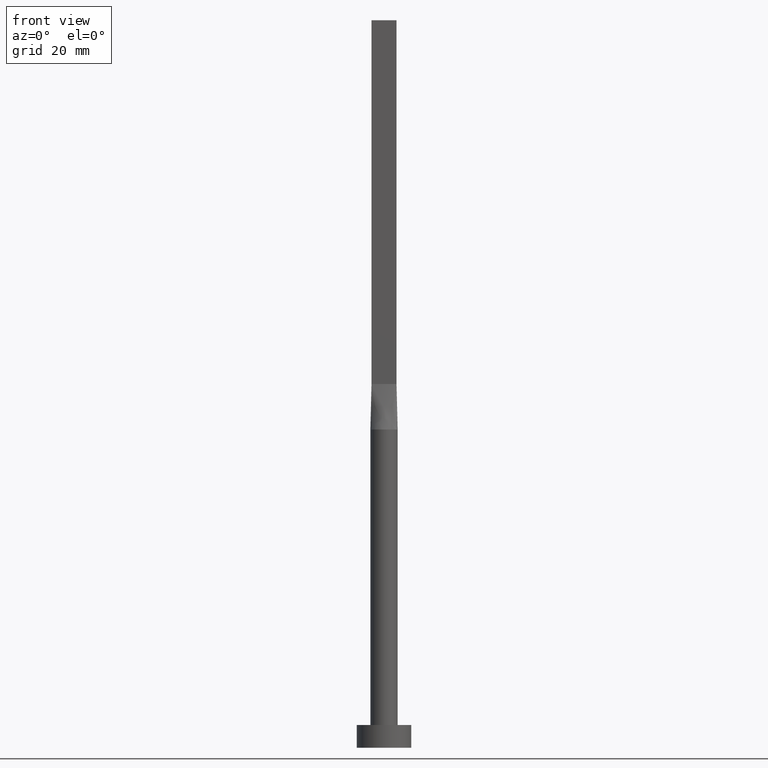
[diagram: clean part render]
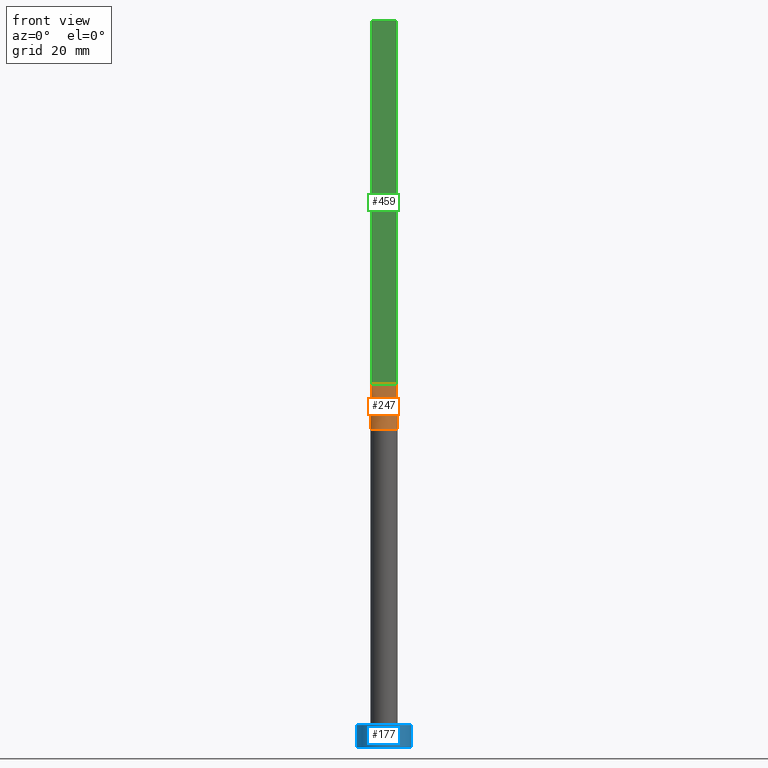
[diagram: same view with three faces highlighted in distinct colors, each labeled with its STEP entity id]
A machine part, front view with three faces highlighted in distinct colors.
Their STEP definitions:

[orange] entity #247 — the highlighted face is a freeform B-spline surface patch.
#14 = CARTESIAN_POINT ( 'NONE',  ( -2.750000000000000000, -0.5999999999999994227, 80.00000000000000000 ) ) ;
#33 = CARTESIAN_POINT ( 'NONE',  ( -0.4583333333333322046, -0.5999999999999994227, 79.99999999999998579 ) ) ;
#34 = CARTESIAN_POINT ( 'NONE',  ( 2.750000000000000000, -0.5999999999999997558, 80.00000000000000000 ) ) ;
#36 = CARTESIAN_POINT ( 'NONE',  ( -1.604166666666664742, -0.5999999999999994227, 79.99999999999998579 ) ) ;
#41 = CARTESIAN_POINT ( 'NONE',  ( -0.8041209001220698260, -2.916015559847872307, 70.00000000000002842 ) ) ;
#54 = DIRECTION ( 'NONE',  ( -0.01810162078030963170, -0.003949444533885651705, -0.9998283518749604415 ) ) ;
#63 = CARTESIAN_POINT ( 'NONE',  ( 2.750000000000000000, -0.5999999999999997558, 80.00000000000000000 ) ) ;
#65 = CARTESIAN_POINT ( 'NONE',  ( -2.518011668798964653, -1.657305971825550062, 70.00000000000000000 ) ) ;
#81 = CARTESIAN_POINT ( 'NONE',  ( 2.931047284229977734, -0.6395012256501753090, 70.00000000000000000 ) ) ;
#82 = CIRCLE ( 'NONE', #409, 3.000000000000000444 ) ;
#88 = DIRECTION ( 'NONE',  ( -0.01810162078030963170, 0.003949444533885597929, 0.9998283518749604415 ) ) ;
#95 = VERTEX_POINT ( 'NONE', #34 ) ;
#108 = CARTESIAN_POINT ( 'NONE',  ( 2.520833333333333037, -0.5999999999999996447, 79.99999999999998579 ) ) ;
#111 = CARTESIAN_POINT ( 'NONE',  ( -2.878980386154874616, -0.8781411751610622707, 70.00000000000000000 ) ) ;
#128 = LINE ( 'NONE', #361, #565 ) ;
#136 = ORIENTED_EDGE ( 'NONE', *, *, #298, .T. ) ;
#152 = CARTESIAN_POINT ( 'NONE',  ( -1.517787371616672321, -2.616501225271827380, 70.00000000000001421 ) ) ;
#167 = CARTESIAN_POINT ( 'NONE',  ( -0.9166666666666650753, -0.5999999999999994227, 79.99999999999998579 ) ) ;
#170 = CARTESIAN_POINT ( 'NONE',  ( 1.517787371616671876, -2.616501225271829156, 70.00000000000002842 ) ) ;
#172 = CARTESIAN_POINT ( 'NONE',  ( -0.4026715616377306572, -3.000000000000000000, 70.00000000000002842 ) ) ;
#189 = LINE ( 'NONE', #506, #467 ) ;
#202 = B_SPLINE_SURFACE_WITH_KNOTS ( 'NONE', 3, 1, ( 
 ( #435, #463 ),
 ( #111, #392 ),
 ( #293, #217 ),
 ( #65, #438 ),
 ( #222, #36 ),
 ( #306, #481 ),
 ( #152, #167 ),
 ( #41, #33 ),
 ( #172, #562 ),
 ( #575, #244 ),
 ( #246, #289 ),
 ( #170, #515 ),
 ( #345, #516 ),
 ( #469, #388 ),
 ( #423, #395 ),
 ( #578, #349 ),
 ( #483, #108 ),
 ( #81, #63 ) ),
 .UNSPECIFIED., .F., .F., .F.,
 ( 4, 2, 2, 2, 2, 2, 2, 2, 4 ),
 ( 2, 2 ),
 ( 0.000000000000000000, 0.1250000000000000833, 0.2500000000000001665, 0.3750000000000001110, 0.5000000000000001110, 0.6250000000000001110, 0.7500000000000000000, 0.8750000000000000000, 1.000000000000000000 ),
 ( 0.000000000000000000, 1.000000000000000000 ),
 .UNSPECIFIED. ) ;
#206 = EDGE_CURVE ( 'NONE', #556, #508, #189, .T. ) ;
#217 = CARTESIAN_POINT ( 'NONE',  ( -2.291666666666665630, -0.5999999999999994227, 79.99999999999998579 ) ) ;
#222 = CARTESIAN_POINT ( 'NONE',  ( -2.328745122427009928, -1.922758842442225058, 69.99999999999998579 ) ) ;
#238 = VERTEX_POINT ( 'NONE', #264 ) ;
#244 = CARTESIAN_POINT ( 'NONE',  ( 0.2291666666666674901, -0.5999999999999995337, 79.99999999999998579 ) ) ;
#246 = CARTESIAN_POINT ( 'NONE',  ( 0.8041209001220684938, -2.916015559847872751, 70.00000000000002842 ) ) ;
#247 = ADVANCED_FACE ( 'NONE', ( #302 ), #202, .T. ) ;
#264 = CARTESIAN_POINT ( 'NONE',  ( 2.931332910560268790, -0.6395638358681950963, 70.00000000000000000 ) ) ;
#289 = CARTESIAN_POINT ( 'NONE',  ( 0.4583333333333343695, -0.5999999999999995337, 79.99999999999998579 ) ) ;
#293 = CARTESIAN_POINT ( 'NONE',  ( -2.792624347712116428, -1.135030881087314647, 69.99999999999998579 ) ) ;
#298 = EDGE_CURVE ( 'NONE', #508, #238, #82, .T. ) ;
#302 = FACE_OUTER_BOUND ( 'NONE', #424, .T. ) ;
#306 = CARTESIAN_POINT ( 'NONE',  ( -1.829136458871248427, -2.402980488111649660, 69.99999999999998579 ) ) ;
#315 = LINE ( 'NONE', #492, #329 ) ;
#329 = VECTOR ( 'NONE', #88, 1000.000000000000000 ) ;
#336 = DIRECTION ( 'NONE',  ( 0.000000000000000000, 0.000000000000000000, 1.000000000000000000 ) ) ;
#345 = CARTESIAN_POINT ( 'NONE',  ( 1.829136458871248205, -2.402980488111650992, 70.00000000000000000 ) ) ;
#349 = CARTESIAN_POINT ( 'NONE',  ( 2.291666666666666519, -0.5999999999999996447, 79.99999999999998579 ) ) ;
#361 = CARTESIAN_POINT ( 'NONE',  ( -2.750000000000000000, -0.5999999999999994227, 80.00000000000000000 ) ) ;
#366 = EDGE_CURVE ( 'NONE', #556, #95, #128, .T. ) ;
#376 = CARTESIAN_POINT ( 'NONE',  ( 0.000000000000000000, 0.000000000000000000, 70.00000000000000000 ) ) ;
#385 = ORIENTED_EDGE ( 'NONE', *, *, #480, .T. ) ;
#388 = CARTESIAN_POINT ( 'NONE',  ( 1.604166666666666963, -0.5999999999999996447, 79.99999999999998579 ) ) ;
#392 = CARTESIAN_POINT ( 'NONE',  ( -2.520833333333333037, -0.5999999999999994227, 79.99999999999998579 ) ) ;
#395 = CARTESIAN_POINT ( 'NONE',  ( 1.833333333333333481, -0.5999999999999996447, 79.99999999999998579 ) ) ;
#409 = AXIS2_PLACEMENT_3D ( 'NONE', #376, #336, #558 ) ;
#422 = ORIENTED_EDGE ( 'NONE', *, *, #206, .T. ) ;
#423 = CARTESIAN_POINT ( 'NONE',  ( 2.518011668798964209, -1.657305971825550506, 70.00000000000001421 ) ) ;
#424 = EDGE_LOOP ( 'NONE', ( #136, #385, #517, #422 ) ) ;
#435 = CARTESIAN_POINT ( 'NONE',  ( -2.931047284229977734, -0.6395012256501755310, 70.00000000000000000 ) ) ;
#438 = CARTESIAN_POINT ( 'NONE',  ( -1.833333333333331705, -0.5999999999999994227, 79.99999999999998579 ) ) ;
#463 = CARTESIAN_POINT ( 'NONE',  ( -2.750000000000000000, -0.5999999999999994227, 80.00000000000000000 ) ) ;
#467 = VECTOR ( 'NONE', #54, 1000.000000000000000 ) ;
#469 = CARTESIAN_POINT ( 'NONE',  ( 2.328745122427008152, -1.922758842442226390, 70.00000000000000000 ) ) ;
#480 = EDGE_CURVE ( 'NONE', #238, #95, #315, .T. ) ;
#481 = CARTESIAN_POINT ( 'NONE',  ( -1.145833333333331705, -0.5999999999999994227, 79.99999999999998579 ) ) ;
#483 = CARTESIAN_POINT ( 'NONE',  ( 2.878980386154875060, -0.8781411751610634919, 70.00000000000000000 ) ) ;
#492 = CARTESIAN_POINT ( 'NONE',  ( 2.840523642114988867, -0.6197506128250874768, 75.00000000000001421 ) ) ;
#506 = CARTESIAN_POINT ( 'NONE',  ( -2.840523642114988867, -0.6197506128250873658, 75.00000000000001421 ) ) ;
#508 = VERTEX_POINT ( 'NONE', #518 ) ;
#515 = CARTESIAN_POINT ( 'NONE',  ( 0.9166666666666676289, -0.5999999999999996447, 79.99999999999998579 ) ) ;
#516 = CARTESIAN_POINT ( 'NONE',  ( 1.145833333333333925, -0.5999999999999996447, 79.99999999999998579 ) ) ;
#517 = ORIENTED_EDGE ( 'NONE', *, *, #366, .F. ) ;
#518 = CARTESIAN_POINT ( 'NONE',  ( -2.931315536094174057, -0.6395601373676296220, 70.00000000000000000 ) ) ;
#534 = DIRECTION ( 'NONE',  ( 1.000000000000000000, -5.913830031739115543E-17, 0.000000000000000000 ) ) ;
#556 = VERTEX_POINT ( 'NONE', #14 ) ;
#558 = DIRECTION ( 'NONE',  ( 1.000000000000000000, 0.000000000000000000, 0.000000000000000000 ) ) ;
#562 = CARTESIAN_POINT ( 'NONE',  ( -0.2291666666666657692, -0.5999999999999995337, 79.99999999999998579 ) ) ;
#565 = VECTOR ( 'NONE', #534, 1000.000000000000000 ) ;
#575 = CARTESIAN_POINT ( 'NONE',  ( 0.4026715616377293805, -3.000000000000001332, 70.00000000000002842 ) ) ;
#578 = CARTESIAN_POINT ( 'NONE',  ( 2.792624347712116872, -1.135030881087315757, 70.00000000000001421 ) ) ;

[blue] entity #177 — the highlighted cylindrical surface (edge-blend (fillet) strip) has radius 6 mm, axis along (-0, -0, -1).
#3 = EDGE_CURVE ( 'NONE', #162, #382, #234, .T. ) ;
#5 = CARTESIAN_POINT ( 'NONE',  ( 6.000000000000000888, 7.347880794884120722E-16, 0.000000000000000000 ) ) ;
#8 = AXIS2_PLACEMENT_3D ( 'NONE', #70, #380, #115 ) ;
#9 = CARTESIAN_POINT ( 'NONE',  ( 6.000000000000000888, 7.347880794884120722E-16, 5.000000000000000000 ) ) ;
#10 = CIRCLE ( 'NONE', #400, 6.000000000000000888 ) ;
#19 = CARTESIAN_POINT ( 'NONE',  ( 0.000000000000000000, 0.000000000000000000, 5.000000000000000000 ) ) ;
#49 = FACE_OUTER_BOUND ( 'NONE', #513, .T. ) ;
#50 = CARTESIAN_POINT ( 'NONE',  ( -6.000000000000000888, 0.000000000000000000, 5.000000000000000000 ) ) ;
#66 = ORIENTED_EDGE ( 'NONE', *, *, #408, .T. ) ;
#70 = CARTESIAN_POINT ( 'NONE',  ( 0.000000000000000000, 0.000000000000000000, 0.000000000000000000 ) ) ;
#85 = DIRECTION ( 'NONE',  ( 1.000000000000000000, 0.000000000000000000, 0.000000000000000000 ) ) ;
#93 = DIRECTION ( 'NONE',  ( -0.000000000000000000, -0.000000000000000000, -1.000000000000000000 ) ) ;
#104 = CARTESIAN_POINT ( 'NONE',  ( -6.000000000000000888, 0.000000000000000000, 0.000000000000000000 ) ) ;
#115 = DIRECTION ( 'NONE',  ( 1.000000000000000000, 0.000000000000000000, 0.000000000000000000 ) ) ;
#142 = CYLINDRICAL_SURFACE ( 'NONE', #360, 6.000000000000000888 ) ;
#162 = VERTEX_POINT ( 'NONE', #104 ) ;
#177 = ADVANCED_FACE ( 'NONE', ( #49 ), #142, .T. ) ;
#196 = DIRECTION ( 'NONE',  ( -1.000000000000000000, 0.000000000000000000, 0.000000000000000000 ) ) ;
#198 = VERTEX_POINT ( 'NONE', #9 ) ;
#234 = CIRCLE ( 'NONE', #8, 6.000000000000000888 ) ;
#255 = ORIENTED_EDGE ( 'NONE', *, *, #449, .F. ) ;
#320 = CARTESIAN_POINT ( 'NONE',  ( 6.000000000000000888, 7.347880794884120722E-16, 5.000000000000000000 ) ) ;
#321 = VECTOR ( 'NONE', #452, 1000.000000000000000 ) ;
#323 = CARTESIAN_POINT ( 'NONE',  ( -6.000000000000000888, 0.000000000000000000, 5.000000000000000000 ) ) ;
#353 = LINE ( 'NONE', #323, #321 ) ;
#359 = DIRECTION ( 'NONE',  ( -0.000000000000000000, -0.000000000000000000, -1.000000000000000000 ) ) ;
#360 = AXIS2_PLACEMENT_3D ( 'NONE', #19, #359, #196 ) ;
#374 = ORIENTED_EDGE ( 'NONE', *, *, #3, .T. ) ;
#380 = DIRECTION ( 'NONE',  ( 0.000000000000000000, 0.000000000000000000, 1.000000000000000000 ) ) ;
#382 = VERTEX_POINT ( 'NONE', #5 ) ;
#400 = AXIS2_PLACEMENT_3D ( 'NONE', #489, #448, #85 ) ;
#401 = LINE ( 'NONE', #320, #510 ) ;
#408 = EDGE_CURVE ( 'NONE', #503, #162, #353, .T. ) ;
#412 = ORIENTED_EDGE ( 'NONE', *, *, #498, .F. ) ;
#448 = DIRECTION ( 'NONE',  ( 0.000000000000000000, 0.000000000000000000, 1.000000000000000000 ) ) ;
#449 = EDGE_CURVE ( 'NONE', #503, #198, #10, .T. ) ;
#452 = DIRECTION ( 'NONE',  ( -0.000000000000000000, -0.000000000000000000, -1.000000000000000000 ) ) ;
#489 = CARTESIAN_POINT ( 'NONE',  ( 0.000000000000000000, 0.000000000000000000, 5.000000000000000000 ) ) ;
#498 = EDGE_CURVE ( 'NONE', #198, #382, #401, .T. ) ;
#503 = VERTEX_POINT ( 'NONE', #50 ) ;
#510 = VECTOR ( 'NONE', #93, 1000.000000000000000 ) ;
#513 = EDGE_LOOP ( 'NONE', ( #412, #255, #66, #374 ) ) ;

[green] entity #459 — the highlighted planar face has unit normal (0, 1, -0).
#14 = CARTESIAN_POINT ( 'NONE',  ( -2.750000000000000000, -0.5999999999999994227, 80.00000000000000000 ) ) ;
#26 = ORIENTED_EDGE ( 'NONE', *, *, #442, .T. ) ;
#34 = CARTESIAN_POINT ( 'NONE',  ( 2.750000000000000000, -0.5999999999999997558, 80.00000000000000000 ) ) ;
#38 = AXIS2_PLACEMENT_3D ( 'NONE', #43, #581, #542 ) ;
#43 = CARTESIAN_POINT ( 'NONE',  ( -2.750000000000000000, -0.5999999999999994227, 160.0000000000000000 ) ) ;
#53 = CARTESIAN_POINT ( 'NONE',  ( -2.750000000000000000, -0.5999999999999994227, 160.0000000000000000 ) ) ;
#68 = ORIENTED_EDGE ( 'NONE', *, *, #266, .F. ) ;
#95 = VERTEX_POINT ( 'NONE', #34 ) ;
#96 = DIRECTION ( 'NONE',  ( 1.000000000000000000, -5.913830031739115543E-17, 0.000000000000000000 ) ) ;
#105 = ORIENTED_EDGE ( 'NONE', *, *, #348, .F. ) ;
#123 = CARTESIAN_POINT ( 'NONE',  ( 2.750000000000000000, -0.5999999999999997558, 160.0000000000000000 ) ) ;
#128 = LINE ( 'NONE', #361, #565 ) ;
#130 = CARTESIAN_POINT ( 'NONE',  ( -2.750000000000000000, -0.5999999999999994227, 160.0000000000000000 ) ) ;
#133 = CARTESIAN_POINT ( 'NONE',  ( -2.750000000000000000, -0.5999999999999994227, 160.0000000000000000 ) ) ;
#164 = VERTEX_POINT ( 'NONE', #287 ) ;
#184 = ORIENTED_EDGE ( 'NONE', *, *, #366, .T. ) ;
#188 = VECTOR ( 'NONE', #317, 1000.000000000000000 ) ;
#232 = LINE ( 'NONE', #53, #486 ) ;
#261 = DIRECTION ( 'NONE',  ( -0.000000000000000000, -0.000000000000000000, -1.000000000000000000 ) ) ;
#266 = EDGE_CURVE ( 'NONE', #164, #95, #485, .T. ) ;
#277 = EDGE_LOOP ( 'NONE', ( #184, #68, #105, #26 ) ) ;
#287 = CARTESIAN_POINT ( 'NONE',  ( 2.750000000000000000, -0.5999999999999997558, 160.0000000000000000 ) ) ;
#313 = LINE ( 'NONE', #130, #188 ) ;
#317 = DIRECTION ( 'NONE',  ( -0.000000000000000000, -0.000000000000000000, -1.000000000000000000 ) ) ;
#348 = EDGE_CURVE ( 'NONE', #478, #164, #232, .T. ) ;
#361 = CARTESIAN_POINT ( 'NONE',  ( -2.750000000000000000, -0.5999999999999994227, 80.00000000000000000 ) ) ;
#366 = EDGE_CURVE ( 'NONE', #556, #95, #128, .T. ) ;
#397 = FACE_OUTER_BOUND ( 'NONE', #277, .T. ) ;
#429 = VECTOR ( 'NONE', #261, 1000.000000000000000 ) ;
#440 = PLANE ( 'NONE',  #38 ) ;
#442 = EDGE_CURVE ( 'NONE', #478, #556, #313, .T. ) ;
#459 = ADVANCED_FACE ( 'NONE', ( #397 ), #440, .F. ) ;
#478 = VERTEX_POINT ( 'NONE', #133 ) ;
#485 = LINE ( 'NONE', #123, #429 ) ;
#486 = VECTOR ( 'NONE', #96, 1000.000000000000000 ) ;
#534 = DIRECTION ( 'NONE',  ( 1.000000000000000000, -5.913830031739115543E-17, 0.000000000000000000 ) ) ;
#542 = DIRECTION ( 'NONE',  ( -1.000000000000000000, 5.913830031739115543E-17, 0.000000000000000000 ) ) ;
#556 = VERTEX_POINT ( 'NONE', #14 ) ;
#565 = VECTOR ( 'NONE', #534, 1000.000000000000000 ) ;
#581 = DIRECTION ( 'NONE',  ( 5.913830031739115543E-17, 1.000000000000000000, -0.000000000000000000 ) ) ;